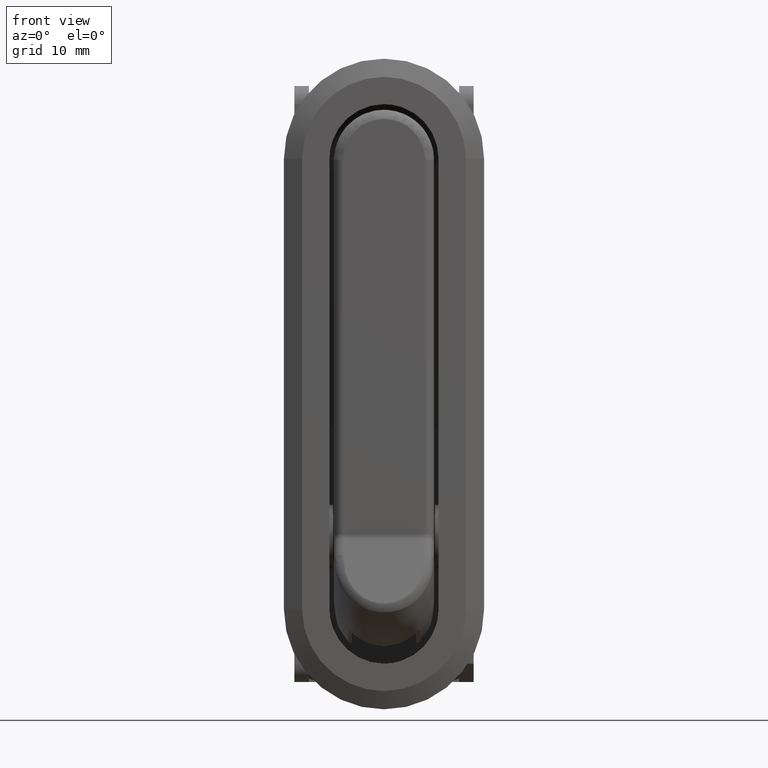
[diagram: clean part render]
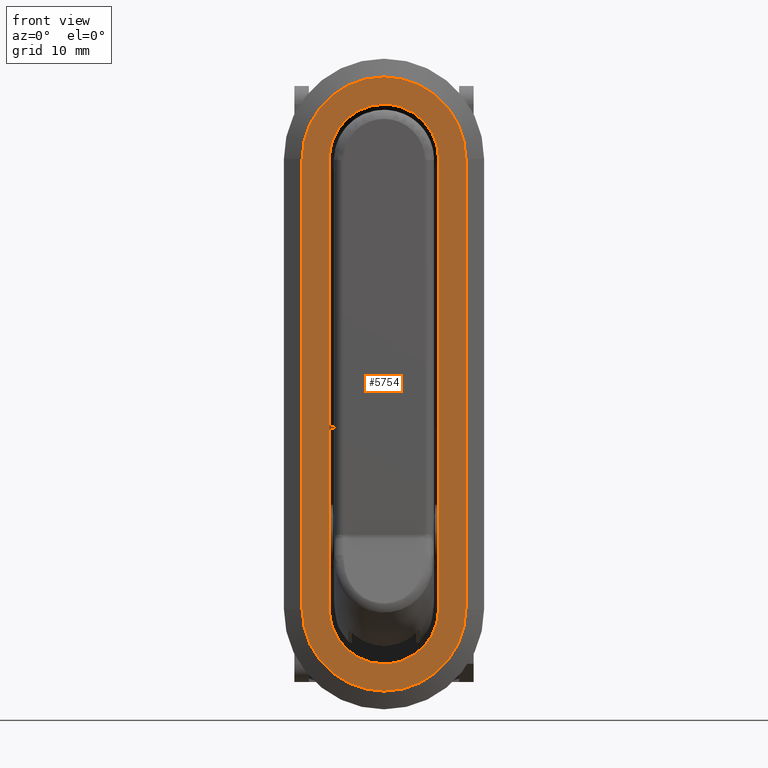
[diagram: same view with one face highlighted and labeled with its STEP entity id]
A machine part, front view. The second image highlights one B-rep face of the part: STEP entity #5754.
In plain terms, the highlighted face is a freeform B-spline surface patch.
Its self-contained STEP definition (entity closure, byte-faithful):
#5141=CARTESIAN_POINT('',(5.999999999994599,-7.499999999985850,41.499999999867853));
#5142=VERTEX_POINT('',#5141);
#5143=CARTESIAN_POINT('',(-0.000001284178482,-7.499999999985850,47.499999999867711));
#5144=VERTEX_POINT('',#5143);
#5145=CARTESIAN_POINT('',(5.999999999994599,-7.499999999985850,41.499999999867853));
#5146=CARTESIAN_POINT('',(6.000288955620798,-7.499999999982880,42.113634855087192));
#5147=CARTESIAN_POINT('',(5.863274859509801,-7.499999999979273,42.997017831891313));
#5148=CARTESIAN_POINT('',(5.413425009631505,-7.499999999975893,44.141820345508087));
#5149=CARTESIAN_POINT('',(4.855345194566564,-7.499999999973966,45.099656716300252));
#5150=CARTESIAN_POINT('',(4.141270931466600,-7.499999999973594,45.887532188023783));
#5151=CARTESIAN_POINT('',(3.342880306268815,-7.499999999974519,46.502602499953177));
#5152=CARTESIAN_POINT('',(2.556192190793126,-7.499999999976070,46.961166451703420));
#5153=CARTESIAN_POINT('',(1.423474701610352,-7.499999999979466,47.382270377107098));
#5154=CARTESIAN_POINT('',(0.515423864002174,-7.499999999983595,47.500124903562060));
#5155=CARTESIAN_POINT('',(-0.000001284178482,-7.499999999985850,47.499999999867711));
#5156=B_SPLINE_CURVE_WITH_KNOTS('',3,(#5145,#5146,#5147,#5148,#5149,#5150,#5151,#5152,#5153,#5154,#5155),.UNSPECIFIED.,.F.,.U.,(4,1,1,1,1,1,1,1,4),(0.000000060972603,1.840787068041523,2.650736284652542,3.681595464796588,5.154204727670335,5.816876493505343,6.700470307486238,7.878581847391926,9.424837821038153),.UNSPECIFIED.);
#5157=EDGE_CURVE('',#5142,#5144,#5156,.T.);
#5159=CARTESIAN_POINT('',(-6.000000000005331,-7.500000000043970,41.499999999867853));
#5160=VERTEX_POINT('',#5159);
#5161=CARTESIAN_POINT('',(-0.000001284178482,-7.499999999985850,47.499999999867711));
#5162=CARTESIAN_POINT('',(-0.613645274042135,-7.499999999988815,47.500345347485812));
#5163=CARTESIAN_POINT('',(-1.521543814844145,-7.499999999993916,47.359400843121819));
#5164=CARTESIAN_POINT('',(-2.755505175484709,-7.500000000002268,46.865900026597352));
#5165=CARTESIAN_POINT('',(-3.697347899080659,-7.500000000009675,46.277596678551113));
#5166=CARTESIAN_POINT('',(-4.572549851842020,-7.500000000017985,45.444303105551313));
#5167=CARTESIAN_POINT('',(-5.239973818437161,-7.500000000025755,44.496617603805952));
#5168=CARTESIAN_POINT('',(-5.695663358324520,-7.500000000032890,43.485385081427097));
#5169=CARTESIAN_POINT('',(-5.947025940595519,-7.500000000038948,42.481738024678883));
#5170=CARTESIAN_POINT('',(-6.000016752199253,-7.500000000042420,41.819062402225477));
#5171=CARTESIAN_POINT('',(-6.000000000005331,-7.500000000043970,41.499999999867853));
#5172=B_SPLINE_CURVE_WITH_KNOTS('',3,(#5161,#5162,#5163,#5164,#5165,#5166,#5167,#5168,#5169,#5170,#5171),.UNSPECIFIED.,.F.,.U.,(4,1,1,1,1,1,1,1,4),(0.000000061441561,1.840786785593247,2.724370469293976,3.976122940432598,5.154203937775344,6.332310487355223,7.436785316659662,8.467643858791876,9.424836373466620),.UNSPECIFIED.);
#5173=EDGE_CURVE('',#5144,#5160,#5172,.T.);
#5339=CARTESIAN_POINT('',(-0.000001284180642,-7.499999999985850,-14.000000000674680));
#5340=VERTEX_POINT('',#5339);
#5341=CARTESIAN_POINT('',(-6.000000000007561,-7.499999999985850,-8.000000000674820));
#5342=VERTEX_POINT('',#5341);
#5343=CARTESIAN_POINT('',(-0.000001284180642,-7.499999999985850,-14.000000000674680));
#5344=CARTESIAN_POINT('',(-0.539982070483932,-7.499999999985845,-14.000169333848421));
#5345=CARTESIAN_POINT('',(-1.374353341860240,-7.499999999985866,-13.886558787182620));
#5346=CARTESIAN_POINT('',(-2.532960613839567,-7.499999999985815,-13.471976376923591));
#5347=CARTESIAN_POINT('',(-3.369827093402255,-7.499999999985905,-12.997889219181481));
#5348=CARTESIAN_POINT('',(-4.229851872023856,-7.499999999985778,-12.300898527729609));
#5349=CARTESIAN_POINT('',(-5.020241742358483,-7.499999999985891,-11.384740265074640));
#5350=CARTESIAN_POINT('',(-5.612445197391566,-7.499999999985795,-10.243312908542380));
#5351=CARTESIAN_POINT('',(-5.934272408077360,-7.499999999985940,-9.079898767270562));
#5352=CARTESIAN_POINT('',(-6.000036629426771,-7.499999999985856,-8.368152698066959));
#5353=CARTESIAN_POINT('',(-6.000000000007561,-7.499999999985850,-8.000000000674820));
#5354=B_SPLINE_CURVE_WITH_KNOTS('',3,(#5343,#5344,#5345,#5346,#5347,#5348,#5349,#5350,#5351,#5352,#5353),.UNSPECIFIED.,.F.,.U.,(4,1,1,1,1,1,1,1,4),(0.000000061442243,1.619884443097688,2.503474721957580,3.681594899882370,4.491552801251008,5.816875599513868,7.289525149985691,8.320378995087133,9.424836373466631),.UNSPECIFIED.);
#5355=EDGE_CURVE('',#5340,#5342,#5354,.T.);
#5357=CARTESIAN_POINT('',(5.999999999992439,-7.499999999985850,-8.000000000674820));
#5358=VERTEX_POINT('',#5357);
#5359=CARTESIAN_POINT('',(5.999999999992439,-7.499999999985850,-8.000000000674820));
#5360=CARTESIAN_POINT('',(6.000017677087345,-7.499999999985850,-8.368151978294115));
#5361=CARTESIAN_POINT('',(5.923029428173487,-7.499999999985869,-9.202649889410491));
#5362=CARTESIAN_POINT('',(5.557143707529654,-7.499999999985826,-10.382771686365430));
#5363=CARTESIAN_POINT('',(4.949276800353083,-7.499999999985882,-11.455658376871860));
#5364=CARTESIAN_POINT('',(4.166059339899841,-7.499999999985819,-12.375018376220631));
#5365=CARTESIAN_POINT('',(3.328990422460030,-7.499999999985882,-13.028286291842189));
#5366=CARTESIAN_POINT('',(2.418112172010000,-7.499999999985834,-13.515080249943450));
#5367=CARTESIAN_POINT('',(1.374383289495212,-7.499999999985862,-13.888626426679039));
#5368=CARTESIAN_POINT('',(0.515426703758148,-7.499999999985871,-14.000129318073080));
#5369=CARTESIAN_POINT('',(-0.000001284180642,-7.499999999985850,-14.000000000674680));
#5370=B_SPLINE_CURVE_WITH_KNOTS('',3,(#5359,#5360,#5361,#5362,#5363,#5364,#5365,#5366,#5367,#5368,#5369),.UNSPECIFIED.,.F.,.U.,(4,1,1,1,1,1,1,1,4),(0.000000060996943,1.104470197621147,2.503475106077771,3.681595464811999,4.786032795957440,6.111404347184198,6.847730496830714,7.878581847395592,9.424837821038056),.UNSPECIFIED.);
#5371=EDGE_CURVE('',#5358,#5340,#5370,.T.);
#5438=CARTESIAN_POINT('',(8.999999999994602,-7.499999999985821,41.499999999867853));
#5439=VERTEX_POINT('',#5438);
#5447=CARTESIAN_POINT('',(-9.000000000005288,-7.499999999985819,41.499999999867853));
#5448=VERTEX_POINT('',#5447);
#5454=CARTESIAN_POINT('',(-0.000001052069293,-7.499999999985820,50.499999999867789));
#5455=VERTEX_POINT('',#5454);
#5456=CARTESIAN_POINT('',(-0.000001052069293,-7.499999999985820,50.499999999867789));
#5457=CARTESIAN_POINT('',(-0.809952954255536,-7.499999999985843,50.500248074209573));
#5458=CARTESIAN_POINT('',(-2.282473378031178,-7.499999999985749,50.299875487510242));
#5459=CARTESIAN_POINT('',(-4.070836220320664,-7.499999999985934,49.584604894041689));
#5460=CARTESIAN_POINT('',(-5.318323758811037,-7.499999999985650,48.794523556651733));
#5461=CARTESIAN_POINT('',(-6.362607479616858,-7.499999999986041,47.915890297228771));
#5462=CARTESIAN_POINT('',(-7.165167259208178,-7.499999999985736,46.996968509674183));
#5463=CARTESIAN_POINT('',(-7.908881607736418,-7.499999999985821,45.853761253355302));
#5464=CARTESIAN_POINT('',(-8.477677979847375,-7.499999999985871,44.651243872293250));
#5465=CARTESIAN_POINT('',(-8.901422768330169,-7.499999999985683,43.119859807906870));
#5466=CARTESIAN_POINT('',(-9.000057465147835,-7.499999999986044,42.052235951317272));
#5467=CARTESIAN_POINT('',(-9.000000000005288,-7.499999999985819,41.499999999867853));
#5468=B_SPLINE_CURVE_WITH_KNOTS('',3,(#5456,#5457,#5458,#5459,#5460,#5461,#5462,#5463,#5464,#5465,#5466,#5467),.UNSPECIFIED.,.F.,.U.,(4,1,1,1,1,1,1,1,1,4),(0.000000010482058,2.429830531009666,4.417898151098076,5.743260895509494,6.847735675345875,8.504438602686532,9.388012781169138,10.934286529694360,12.480551136864509,14.137255052911661),.UNSPECIFIED.);
#5469=EDGE_CURVE('',#5455,#5448,#5468,.T.);
#5471=CARTESIAN_POINT('',(8.999999999994602,-7.499999999985821,41.499999999867853));
#5472=CARTESIAN_POINT('',(9.000022493444948,-7.499999999985814,41.941782245500377));
#5473=CARTESIAN_POINT('',(8.934817781744407,-7.499999999985836,42.825348940920080));
#5474=CARTESIAN_POINT('',(8.659822427196991,-7.499999999985841,44.049975344785089));
#5475=CARTESIAN_POINT('',(8.222860333168871,-7.499999999985798,45.225478862999623));
#5476=CARTESIAN_POINT('',(7.526887615153581,-7.499999999985840,46.527822082533291));
#5477=CARTESIAN_POINT('',(6.531642167035961,-7.499999999985819,47.771305562086262));
#5478=CARTESIAN_POINT('',(5.322701281543377,-7.499999999985822,48.801164504791757));
#5479=CARTESIAN_POINT('',(4.222710854537574,-7.499999999985818,49.478942236704199));
#5480=CARTESIAN_POINT('',(3.008774295065257,-7.499999999985796,50.017074241190038));
#5481=CARTESIAN_POINT('',(1.619865060274977,-7.499999999985867,50.401426667558091));
#5482=CARTESIAN_POINT('',(0.552234168371980,-7.499999999985764,50.500060864393902));
#5483=CARTESIAN_POINT('',(-0.000001052069293,-7.499999999985820,50.499999999867789));
#5484=B_SPLINE_CURVE_WITH_KNOTS('',3,(#5471,#5472,#5473,#5474,#5475,#5476,#5477,#5478,#5479,#5480,#5481,#5482,#5483),.UNSPECIFIED.,.F.,.U.,(4,1,1,1,1,1,1,1,1,1,4),(0.000000010102008,1.325353682073320,2.650727087381386,3.755210949718252,5.080581098489196,7.068628122343906,8.504439315162287,9.829804206016974,10.934287446997130,12.480552183450550,14.137256238840470),.UNSPECIFIED.);
#5485=EDGE_CURVE('',#5439,#5455,#5484,.T.);
#5495=CARTESIAN_POINT('',(-9.000000000005288,-7.499999999985819,-8.000000000134840));
#5496=VERTEX_POINT('',#5495);
#5502=CARTESIAN_POINT('',(-9.000000000005288,-7.499999999985819,41.499999999867853));
#5503=CARTESIAN_POINT('',(-9.000000000005288,-7.499999999985819,-8.000000000134840));
#5504=QUASI_UNIFORM_CURVE('',1,(#5502,#5503),.UNSPECIFIED.,.F.,.U.);
#5505=EDGE_CURVE('',#5448,#5496,#5504,.T.);
#5517=CARTESIAN_POINT('',(8.999999999994671,-7.499999999985821,-8.000000000134829));
#5518=VERTEX_POINT('',#5517);
#5526=CARTESIAN_POINT('',(8.999999999994671,-7.499999999985821,-8.000000000134829));
#5527=CARTESIAN_POINT('',(8.999999999994602,-7.499999999985821,41.499999999867853));
#5528=QUASI_UNIFORM_CURVE('',1,(#5526,#5527),.UNSPECIFIED.,.F.,.U.);
#5529=EDGE_CURVE('',#5518,#5439,#5528,.T.);
#5556=CARTESIAN_POINT('',(0.000001052058527,-7.499999999985819,-17.000000000134769));
#5557=VERTEX_POINT('',#5556);
#5558=CARTESIAN_POINT('',(0.000001052058527,-7.499999999985819,-17.000000000134769));
#5559=CARTESIAN_POINT('',(0.662682551291754,-7.499999999985812,-17.000113252501698));
#5560=CARTESIAN_POINT('',(1.840738545664483,-7.499999999985826,-16.869292943541922));
#5561=CARTESIAN_POINT('',(3.320221406328868,-7.499999999985813,-16.400546283867079));
#5562=CARTESIAN_POINT('',(4.513537481975231,-7.499999999985832,-15.818113195091390));
#5563=CARTESIAN_POINT('',(5.495744906261966,-7.499999999985789,-15.161822124680400));
#5564=CARTESIAN_POINT('',(6.407590468972673,-7.499999999985884,-14.355524847150059));
#5565=CARTESIAN_POINT('',(7.257149662884267,-7.499999999985800,-13.382813206580799));
#5566=CARTESIAN_POINT('',(8.028178612230294,-7.499999999985807,-12.165299144006550));
#5567=CARTESIAN_POINT('',(8.537210078802536,-7.499999999985826,-10.936289470699810));
#5568=CARTESIAN_POINT('',(8.903580265331971,-7.499999999985843,-9.546206590673144));
#5569=CARTESIAN_POINT('',(9.000097490076122,-7.499999999985787,-8.625873321636803));
#5570=CARTESIAN_POINT('',(8.999999999994671,-7.499999999985821,-8.000000000134829));
#5571=B_SPLINE_CURVE_WITH_KNOTS('',3,(#5558,#5559,#5560,#5561,#5562,#5563,#5564,#5565,#5566,#5567,#5568,#5569,#5570),.UNSPECIFIED.,.F.,.U.,(4,1,1,1,1,1,1,1,1,1,4),(0.000000010478052,1.988038888037039,3.534313999854156,4.638792904935357,5.964157083396252,7.068627528363702,8.283545943478762,9.829803381501591,11.376079200337710,12.259657911938090,14.137255052911790),.UNSPECIFIED.);
#5572=EDGE_CURVE('',#5557,#5518,#5571,.T.);
#5574=CARTESIAN_POINT('',(-9.000000000005288,-7.499999999985819,-8.000000000134840));
#5575=CARTESIAN_POINT('',(-9.000044152112798,-7.499999999985820,-8.515414935391037));
#5576=CARTESIAN_POINT('',(-8.911213998200919,-7.499999999985801,-9.546237423302285));
#5577=CARTESIAN_POINT('',(-8.534529049962318,-7.499999999985858,-10.975495198706920));
#5578=CARTESIAN_POINT('',(-7.995928585983288,-7.499999999985762,-12.190419368392851));
#5579=CARTESIAN_POINT('',(-7.222049451660975,-7.499999999985862,-13.446597865067950));
#5580=CARTESIAN_POINT('',(-6.216045148226532,-7.499999999985815,-14.584221423579400));
#5581=CARTESIAN_POINT('',(-4.841043773940701,-7.499999999985804,-15.643762202647920));
#5582=CARTESIAN_POINT('',(-3.494739241045486,-7.499999999985833,-16.342248656133538));
#5583=CARTESIAN_POINT('',(-1.840710490149643,-7.499999999985819,-16.866242299293638));
#5584=CARTESIAN_POINT('',(-0.699506399492349,-7.499999999985815,-17.000152367516950));
#5585=CARTESIAN_POINT('',(0.000001052058527,-7.499999999985819,-17.000000000134769));
#5586=B_SPLINE_CURVE_WITH_KNOTS('',3,(#5574,#5575,#5576,#5577,#5578,#5579,#5580,#5581,#5582,#5583,#5584,#5585),.UNSPECIFIED.,.F.,.U.,(4,1,1,1,1,1,1,1,1,4),(0.000000010110357,1.546248628566231,3.092520547228686,4.417898521326105,5.522367114176742,7.510414793703221,8.946225420167636,10.713390631896720,12.038765171159250,14.137256238840370),.UNSPECIFIED.);
#5587=EDGE_CURVE('',#5496,#5557,#5586,.T.);
#5725=CARTESIAN_POINT('',(-9.899099965117793,-7.499999999985819,53.871624869039813));
#5726=CARTESIAN_POINT('',(9.899100447904797,-7.499999999985821,53.871624869039813));
#5727=CARTESIAN_POINT('',(-9.899099965117793,-7.499999999985819,-20.371626679797881));
#5728=CARTESIAN_POINT('',(9.899100447904797,-7.499999999985821,-20.371626679797881));
#5729=B_SPLINE_SURFACE_WITH_KNOTS('',1,1,((#5725,#5727),(#5726,#5728)),.UNSPECIFIED.,.F.,.F.,.U.,(2,2),(2,2),(0.0,19.798200413022592),(0.0,74.243251548837691),.UNSPECIFIED.);
#5730=ORIENTED_EDGE('',*,*,#5529,.T.);
#5731=ORIENTED_EDGE('',*,*,#5485,.T.);
#5732=ORIENTED_EDGE('',*,*,#5469,.T.);
#5733=ORIENTED_EDGE('',*,*,#5505,.T.);
#5734=ORIENTED_EDGE('',*,*,#5587,.T.);
#5735=ORIENTED_EDGE('',*,*,#5572,.T.);
#5736=EDGE_LOOP('',(#5730,#5731,#5732,#5733,#5734,#5735));
#5737=FACE_OUTER_BOUND('',#5736,.T.);
#5738=CARTESIAN_POINT('',(-6.000000000007561,-7.499999999985850,-8.000000000674820));
#5739=CARTESIAN_POINT('',(-6.000000000005331,-7.500000000043970,41.499999999867853));
#5740=QUASI_UNIFORM_CURVE('',1,(#5738,#5739),.UNSPECIFIED.,.F.,.U.);
#5741=EDGE_CURVE('',#5342,#5160,#5740,.T.);
#5742=ORIENTED_EDGE('',*,*,#5741,.T.);
#5743=ORIENTED_EDGE('',*,*,#5173,.F.);
#5744=ORIENTED_EDGE('',*,*,#5157,.F.);
#5745=CARTESIAN_POINT('',(5.999999999994599,-7.499999999985850,41.499999999867853));
#5746=CARTESIAN_POINT('',(5.999999999992439,-7.499999999985850,-8.000000000674820));
#5747=QUASI_UNIFORM_CURVE('',1,(#5745,#5746),.UNSPECIFIED.,.F.,.U.);
#5748=EDGE_CURVE('',#5142,#5358,#5747,.T.);
#5749=ORIENTED_EDGE('',*,*,#5748,.T.);
#5750=ORIENTED_EDGE('',*,*,#5371,.T.);
#5751=ORIENTED_EDGE('',*,*,#5355,.T.);
#5752=EDGE_LOOP('',(#5742,#5743,#5744,#5749,#5750,#5751));
#5753=FACE_BOUND('',#5752,.T.);
#5754=ADVANCED_FACE('',(#5737,#5753),#5729,.F.);